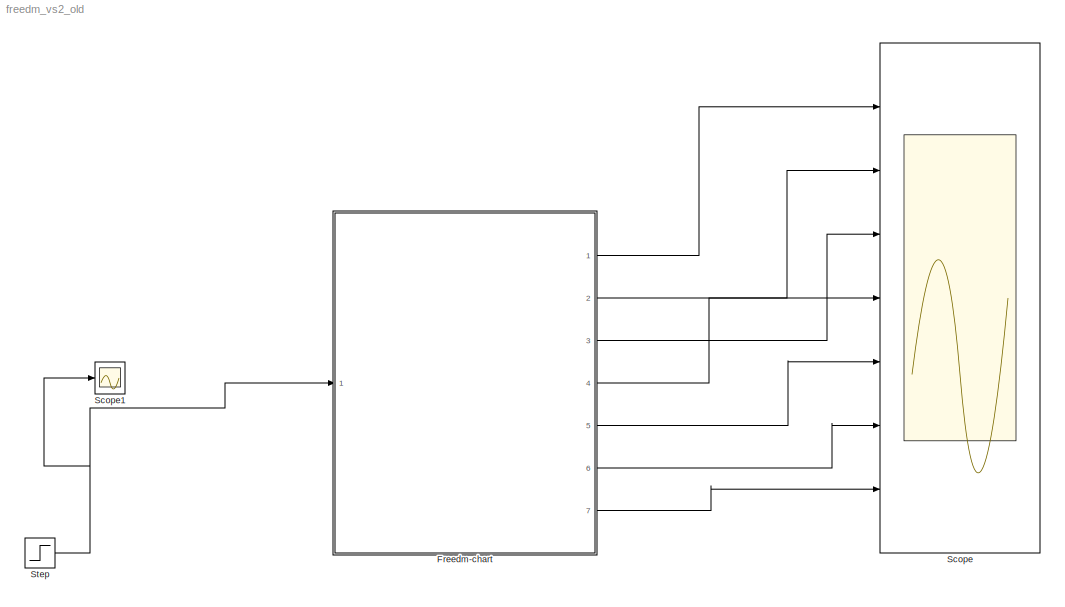
MODEL freedm_vs2_old
KIND model
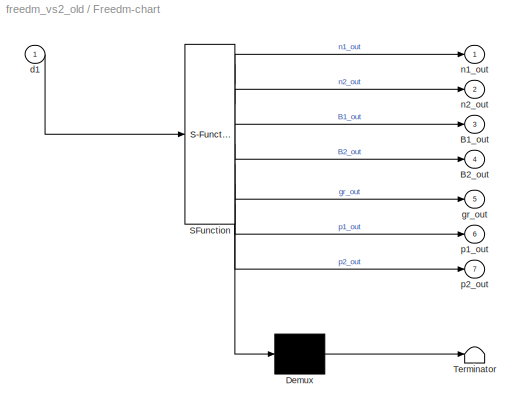
BLOCK [SubSystem] Freedm-chart
  ErrorFcn = Stateflow.Translate.translate
  PermitHierarchicalResolution = ExplicitOnly
  Ports = [1, 7]
  RequestExecContextInheritance = off
  SFBlockType = Chart
  SID = 1
  TreatAsAtomicUnit = on
BLOCK [Demux] Freedm-chart/ Demux 
  Outputs = 1
  Ports = [1, 1]
  SID = 1::81
BLOCK [S-Function] Freedm-chart/ SFunction 
  EnableBusSupport = on
  FunctionName = sf_sfun
  Parameters = Bmax,d2,grm0,maxm,r1,r2,thresh
  PortCounts = [1 8]
  Ports = [1, 8]
  SFcnIsStateOwnerBlock = off
  SFunctionDeploymentMode = off
  SID = 1::80
  Tag = Stateflow S-Function freedm_vs2_old 1
BLOCK [Terminator] Freedm-chart/ Terminator 
  SID = 1::82
BLOCK [Outport] Freedm-chart/B1_out
  IconDisplay = Port number
  Port = 3
  SID = 1::73
BLOCK [Outport] Freedm-chart/B2_out
  IconDisplay = Port number
  Port = 4
  SID = 1::74
BLOCK [Inport] Freedm-chart/d1
  IconDisplay = Port number
  SID = 1::84
BLOCK [Outport] Freedm-chart/gr_out
  IconDisplay = Port number
  Port = 5
  SID = 1::76
BLOCK [Outport] Freedm-chart/n1_out
  IconDisplay = Port number
  SID = 1::67
BLOCK [Outport] Freedm-chart/n2_out
  IconDisplay = Port number
  Port = 2
  SID = 1::68
BLOCK [Outport] Freedm-chart/p1_out
  IconDisplay = Port number
  Port = 6
  SID = 1::77
BLOCK [Outport] Freedm-chart/p2_out
  IconDisplay = Port number
  Port = 7
  SID = 1::78
BLOCK [Scope] Scope
  Floating = off
  NumInputPorts = 7
  Ports = [7]
  SID = 2
  ScopeSpecificationString = Simulink.scopes.TimeScopeBlockCfg('CurrentConfiguration', extmgr.ConfigurationSet(extmgr.Configuration('Core','General UI',true,'FigureColor',[1 1 1]),extmgr.Configuration('Core','Source UI',true),extmgr.Configuration('Sources','WiredSimulink',true,'DataLogging',true,'DataLoggingVariableName','smib_ScopeData','DataLoggingSaveFormat','StructureWithTime','DataLoggingDecimation','1','DataLoggingDecim...<+10053ch>
BLOCK [Scope] Scope1
  Floating = off
  NumInputPorts = 1
  Ports = [1]
  SID = 16
  ScopeSpecificationString = Simulink.scopes.TimeScopeBlockCfg('CurrentConfiguration', extmgr.ConfigurationSet(extmgr.Configuration('Core','General UI',true),extmgr.Configuration('Core','Source UI',true),extmgr.Configuration('Sources','WiredSimulink',true,'DataLoggingVariableName','ScopeData1'),extmgr.Configuration('Visuals','Time Domain',true,'SerializedDisplays',{struct('MinYLimReal','-1.25','MaxYLimReal','11.25','YLabelRea...<+1345ch>
BLOCK [Step] Step
  After = 0
  Before = 10
  SID = 17
  SampleTime = 0
  Time = 10
LINE Freedm-chart/ Demux :1 -> Freedm-chart/ Terminator :1
LINE Freedm-chart/ SFunction :1 -> Freedm-chart/ Demux :1
LINE Freedm-chart/ SFunction :2 -> Freedm-chart/n1_out:1
LINE Freedm-chart/ SFunction :3 -> Freedm-chart/n2_out:1
LINE Freedm-chart/ SFunction :4 -> Freedm-chart/B1_out:1
LINE Freedm-chart/ SFunction :5 -> Freedm-chart/B2_out:1
LINE Freedm-chart/ SFunction :6 -> Freedm-chart/gr_out:1
LINE Freedm-chart/ SFunction :7 -> Freedm-chart/p1_out:1
LINE Freedm-chart/ SFunction :8 -> Freedm-chart/p2_out:1
LINE Freedm-chart/d1:1 -> Freedm-chart/ SFunction :1
LINE Freedm-chart:1 -> Scope:1
LINE Freedm-chart:2 -> Scope:2
LINE Freedm-chart:3 -> Scope:3
LINE Freedm-chart:4 -> Scope:4
LINE Freedm-chart:5 -> Scope:5
LINE Freedm-chart:6 -> Scope:6
LINE Freedm-chart:7 -> Scope:7
NET Step:1 -> Freedm-chart:1, Scope1:1
note: NET lines group one-source signal fan-out (src -> all destinations, sorted); 1:1 wires keep LINE
CHART Freedm-chart states=20 transitions=18
  STATE_LABEL 'To_bat2<path>'
  STATE_LABEL 'Mode11\\n <path>'
  STATE_LABEL 'Mode12\\n'
  STATE_LABEL 'Mode21<path>'
  STATE_LABEL 'Migrate2'
  STATE_LABEL 'Mode22\\n\\n'
  STATE_LABEL 'Migrate'
  STATE_LABEL 'Migrate1'
  STATE_LABEL 'To_grid1\\n'
  STATE_LABEL 'Battery_controller'
  STATE_LABEL 'To_bat1<path>'
  STATE_LABEL 'Bat1'
  STATE_LABEL 'Bat2'
  STATE_LABEL 'To_grid2\\n'
  STATE_LABEL 'Plan11\\ndu:\\np1_dot = -m; B1_dot = b1; b1_dot = bm1; gr_dot = grm;\\nt_dot = 1;\\ngr_out = gr;\\nB1_out = B1;\\np1_out = p1;\\nn1_out = d1 - (r1+p1);'
  STATE_LABEL 'Plan22\\ndu:\\np2_dot = m; B2_dot = b2; b2_dot = bm2;\\nB2_out = B2;\\np2_out = p2;\\nn2_out = d2 - (r2+p2);'
  STATE_LABEL 'plant1'
  STATE_LABEL 'Plan12\\ndu:\\np1_dot = -m; B1_dot = b1; b1_dot = bm1; gr_dot = grm;\\nt_dot = 1;\\ngr_out = gr;\\nB1_out = B1;\\np1_out = p1;\\nn1_out = d1 - (r1+p1);'
  STATE_LABEL 'Plan21\\ndu:\\np2_dot = m; B2_dot = b2; b2_dot = bm2;\\nB2_out = B2;\\np2_out = p2;\\nn2_out = d2 - (r2+p2);'
  STATE_LABEL 'plant2'
note: 4 file-system paths scrubbed to <path> (not preserved elsewhere — flat text is the only slx artifact)
